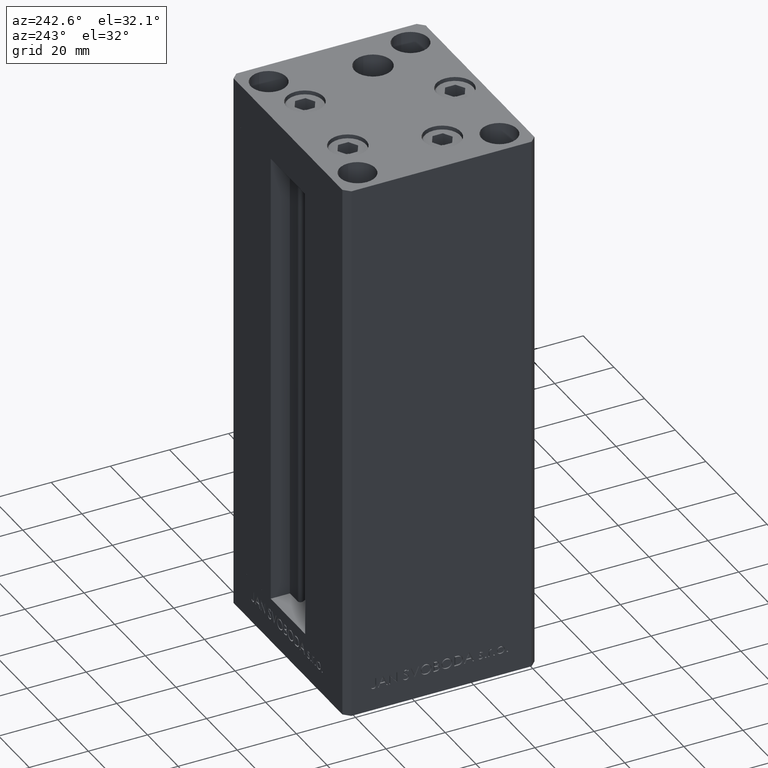
[diagram: clean part render]
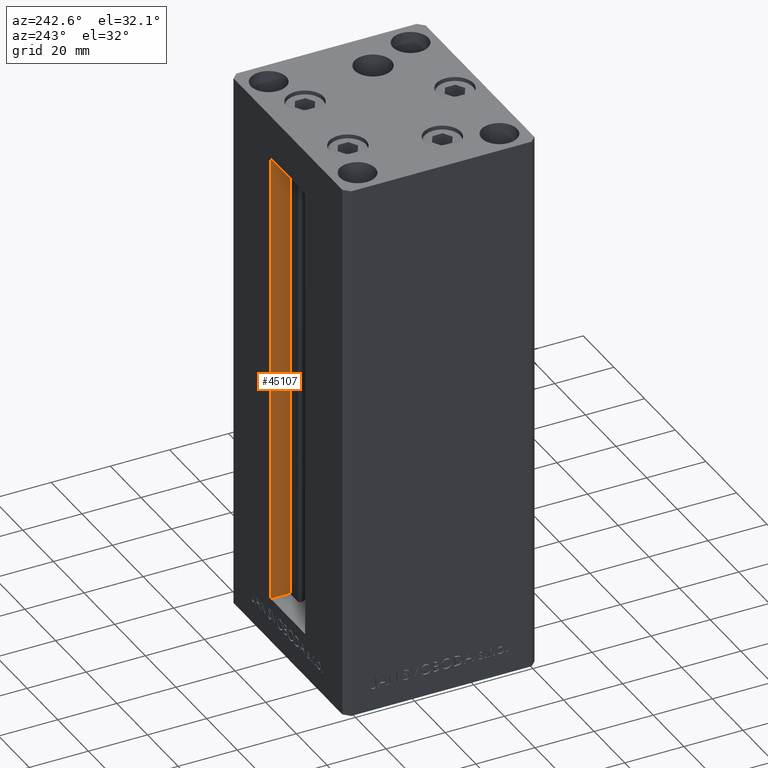
[diagram: same view with one face highlighted and labeled with its STEP entity id]
A machine part, auxiliary view. The second image highlights one B-rep face of the part: STEP entity #45107.
In plain terms, the highlighted planar face has unit normal (1, 0, 0).
Its self-contained STEP definition (entity closure, byte-faithful):
#831 = CARTESIAN_POINT ( 'NONE',  ( 11.25000000000000178, 25.99999999999999289, 156.0000000000000000 ) ) ;
#2138 = DIRECTION ( 'NONE',  ( -0.000000000000000000, -0.000000000000000000, 1.000000000000000000 ) ) ;
#4377 = EDGE_LOOP ( 'NONE', ( #10088, #6803, #35216, #13613 ) ) ;
#4534 = PLANE ( 'NONE',  #30819 ) ;
#4781 = DIRECTION ( 'NONE',  ( 1.000000000000000000, -0.000000000000000000, 0.000000000000000000 ) ) ;
#6803 = ORIENTED_EDGE ( 'NONE', *, *, #31142, .F. ) ;
#9129 = DIRECTION ( 'NONE',  ( 0.000000000000000000, 1.000000000000000000, 0.000000000000000000 ) ) ;
#10088 = ORIENTED_EDGE ( 'NONE', *, *, #25062, .F. ) ;
#11495 = VECTOR ( 'NONE', #42542, 1000.000000000000000 ) ;
#12313 = VECTOR ( 'NONE', #25000, 1000.000000000000000 ) ;
#12792 = VECTOR ( 'NONE', #2138, 1000.000000000000000 ) ;
#13613 = ORIENTED_EDGE ( 'NONE', *, *, #25986, .F. ) ;
#13889 = CARTESIAN_POINT ( 'NONE',  ( 11.24999999999999467, 32.49999999999999289, 156.0000000000000000 ) ) ;
#15170 = FACE_OUTER_BOUND ( 'NONE', #4377, .T. ) ;
#16955 = CARTESIAN_POINT ( 'NONE',  ( 11.25000000000000178, 25.99999999999999289, 0.000000000000000000 ) ) ;
#17101 = VECTOR ( 'NONE', #9129, 1000.000000000000000 ) ;
#18863 = CARTESIAN_POINT ( 'NONE',  ( 11.25000000000000178, 25.99999999999999289, 0.000000000000000000 ) ) ;
#24058 = VERTEX_POINT ( 'NONE', #32825 ) ;
#25000 = DIRECTION ( 'NONE',  ( -0.000000000000000000, -1.000000000000000000, 0.000000000000000000 ) ) ;
#25062 = EDGE_CURVE ( 'NONE', #24058, #42764, #34854, .T. ) ;
#25986 = EDGE_CURVE ( 'NONE', #42764, #44554, #40111, .T. ) ;
#26544 = DIRECTION ( 'NONE',  ( 0.000000000000000000, 0.000000000000000000, -1.000000000000000000 ) ) ;
#29358 = CARTESIAN_POINT ( 'NONE',  ( 11.25000000000000178, 25.99999999999999289, 0.000000000000000000 ) ) ;
#30819 = AXIS2_PLACEMENT_3D ( 'NONE', #18863, #4781, #26544 ) ;
#31142 = EDGE_CURVE ( 'NONE', #40516, #24058, #35345, .T. ) ;
#32122 = CARTESIAN_POINT ( 'NONE',  ( 11.25000000000000178, 25.99999999999999289, 0.000000000000000000 ) ) ;
#32825 = CARTESIAN_POINT ( 'NONE',  ( 11.25000000000000178, 32.49999999999999289, 0.000000000000000000 ) ) ;
#32907 = CARTESIAN_POINT ( 'NONE',  ( 11.25000000000000178, 0.000000000000000000, 156.0000000000000000 ) ) ;
#34854 = LINE ( 'NONE', #43031, #11495 ) ;
#35216 = ORIENTED_EDGE ( 'NONE', *, *, #48660, .T. ) ;
#35345 = LINE ( 'NONE', #32122, #17101 ) ;
#39733 = LINE ( 'NONE', #16955, #12792 ) ;
#40111 = LINE ( 'NONE', #32907, #12313 ) ;
#40516 = VERTEX_POINT ( 'NONE', #29358 ) ;
#42542 = DIRECTION ( 'NONE',  ( -0.000000000000000000, -0.000000000000000000, 1.000000000000000000 ) ) ;
#42764 = VERTEX_POINT ( 'NONE', #13889 ) ;
#43031 = CARTESIAN_POINT ( 'NONE',  ( 11.25000000000000178, 32.49999999999999289, 0.000000000000000000 ) ) ;
#44554 = VERTEX_POINT ( 'NONE', #831 ) ;
#45107 = ADVANCED_FACE ( 'NONE', ( #15170 ), #4534, .F. ) ;
#48660 = EDGE_CURVE ( 'NONE', #40516, #44554, #39733, .T. ) ;